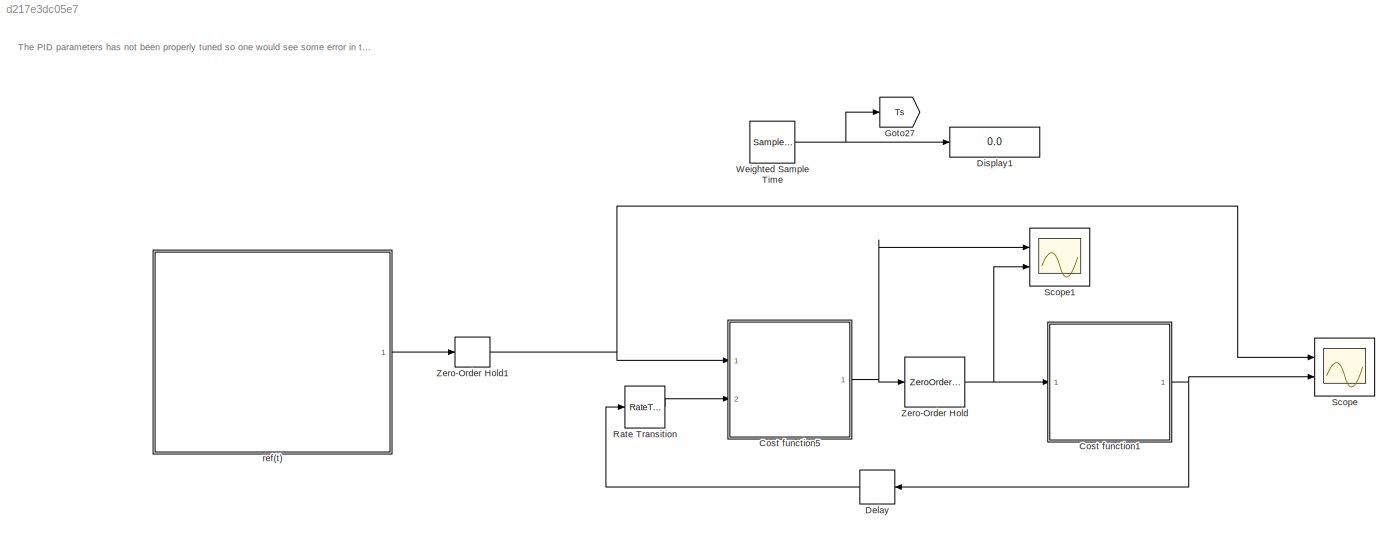
MODEL slx_d217e3dc05e7
KIND model
CONFIG AbsTol = auto
CONFIG EnableMultiTasking = off
CONFIG FixedStep = 0.001
CONFIG InitFcn = params.Kp = 98.4128;\nparams.Ki = 0.4971;\nparams.Kd = 0-64.7658;\nparams.u_min = -10;\nparams.u_max =  10;\nparams.enable_anti_windup = true;\nparams.deriv_filter_hz = 1.3029/(2*pi);\n\npid_mex('init', params);\n
CONFIG MaxStep = auto
CONFIG MinStep = auto
CONFIG RelTol = 1e-3
CONFIG SampleTimeConstraint = Unconstrained
CONFIG SolverName = FixedStepAuto
CONFIG StartTime = 0.0
CONFIG StopFcn = pid_mex('reset');\n
CONFIG StopTime = 10
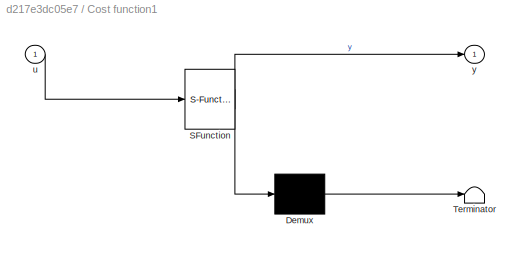
BLOCK [SubSystem] Cost function1
  ErrorFcn = Stateflow.Translate.translate
  PermitHierarchicalResolution = ExplicitOnly
  Ports = [1, 1]
  RequestExecContextInheritance = off
  SFBlockType = MATLAB Function
  SystemSampleTime = 0.001
  TreatAsAtomicUnit = on
BLOCK [Demux] Cost function1/ Demux 
  Outputs = 1
  Ports = [1, 1]
BLOCK [S-Function] Cost function1/ SFunction 
  EnableBusSupport = on
  FunctionName = sf_sfun
  PortCounts = [1 2]
  Ports = [1, 2]
  SFcnIsStateOwnerBlock = off
  SFunctionDeploymentMode = off
  Tag = Stateflow S-Function 1
BLOCK [Terminator] Cost function1/ Terminator 
BLOCK [Inport] Cost function1/u
BLOCK [Outport] Cost function1/y
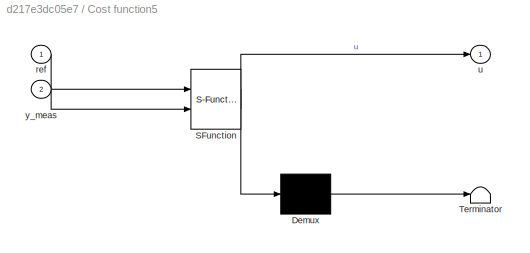
BLOCK [SubSystem] Cost function5
  ErrorFcn = Stateflow.Translate.translate
  PermitHierarchicalResolution = ExplicitOnly
  Ports = [2, 1]
  RequestExecContextInheritance = off
  SFBlockType = MATLAB Function
  SystemSampleTime = 0.01
  TreatAsAtomicUnit = on
BLOCK [Demux] Cost function5/ Demux 
  Outputs = 1
  Ports = [1, 1]
BLOCK [S-Function] Cost function5/ SFunction 
  EnableBusSupport = on
  FunctionName = sf_sfun
  PortCounts = [2 2]
  Ports = [2, 2]
  SFcnIsStateOwnerBlock = off
  SFunctionDeploymentMode = off
  Tag = Stateflow S-Function 17
BLOCK [Terminator] Cost function5/ Terminator 
BLOCK [Inport] Cost function5/ref
BLOCK [Outport] Cost function5/u
BLOCK [Inport] Cost function5/y_meas
  Port = 2
BLOCK [Delay] Delay
  DelayLength = 1
  InputPortMap = u0
  NameLocation = top
  Ports = [1, 1]
BLOCK [Display] Display1
  Decimation = 1
  Ports = [1]
BLOCK [Goto] Goto27
  GotoTag = Ts
  TagVisibility = global
BLOCK [RateTransition] Rate Transition
  OutPortSampleTime = 0.01
BLOCK [Scope] Scope
  Floating = off
  NumInputPorts = 2
  Ports = [2]
  ScopeSpecificationString = Simulink.scopes.TimeScopeBlockCfg('CurrentConfiguration', extmgr.ConfigurationSet(extmgr.Configuration('Core','General UI',true),extmgr.Configuration('Core','Source UI',true),extmgr.Configuration('Sources','WiredSimulink',true),extmgr.Configuration('Visuals','Time Domain',true,'SerializedDisplays',{struct('MinYLimReal','-0.075','MaxYLimReal','0.675','YLabelReal','','MinYLimMag','0.00000','MaxYLimM...<+1444ch>
BLOCK [Scope] Scope1
  Floating = off
  NumInputPorts = 2
  Ports = [2]
  ScopeSpecificationString = Simulink.scopes.TimeScopeBlockCfg('CurrentConfiguration', extmgr.ConfigurationSet(extmgr.Configuration('Core','General UI',true),extmgr.Configuration('Core','Source UI',true),extmgr.Configuration('Sources','WiredSimulink',true,'DataLoggingVariableName','ScopeData1'),extmgr.Configuration('Visuals','Time Domain',true,'SerializedDisplays',{struct('MinYLimReal','-0.72909','MaxYLimReal','6.56179','YLab...<+1655ch>
BLOCK [SampleTimeMath] Weighted Sample Time
  TsampMathOp = Ts Only
BLOCK [ZeroOrderHold] Zero-Order Hold
  SampleTime = 0.001
BLOCK [ZeroOrderHold] Zero-Order Hold1
  SampleTime = 0.001
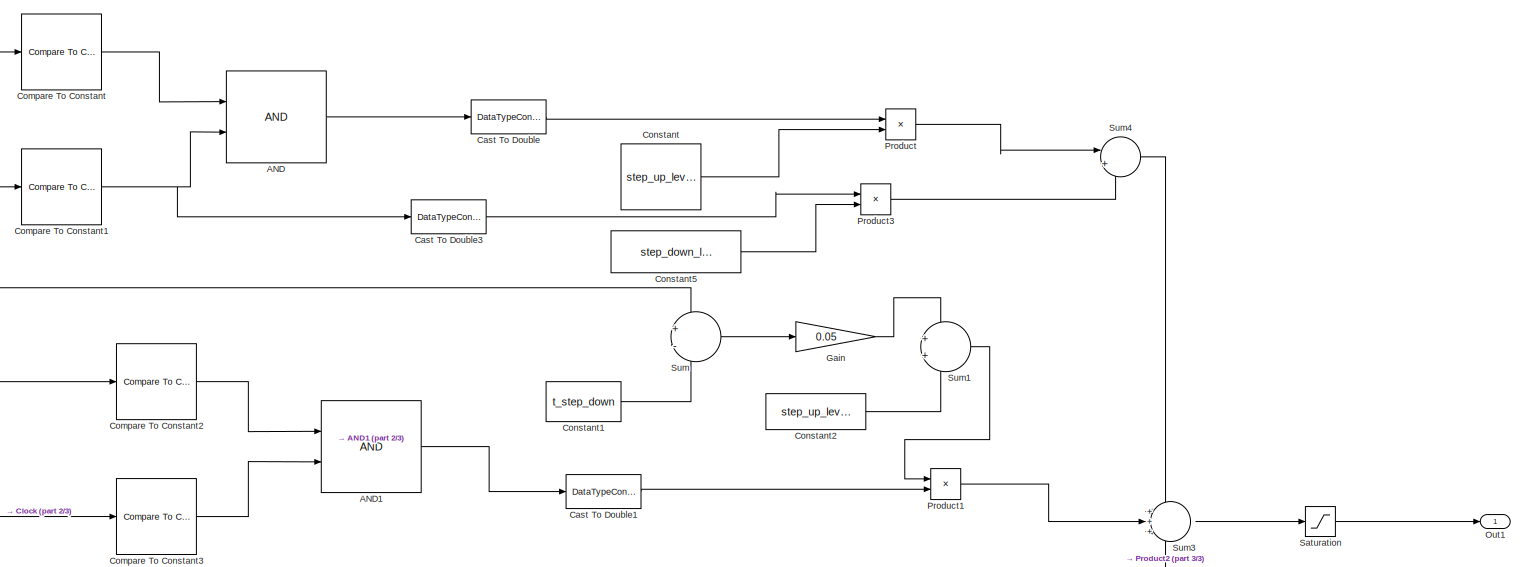
[diagram: ref(t) - part 1/3, top center region]
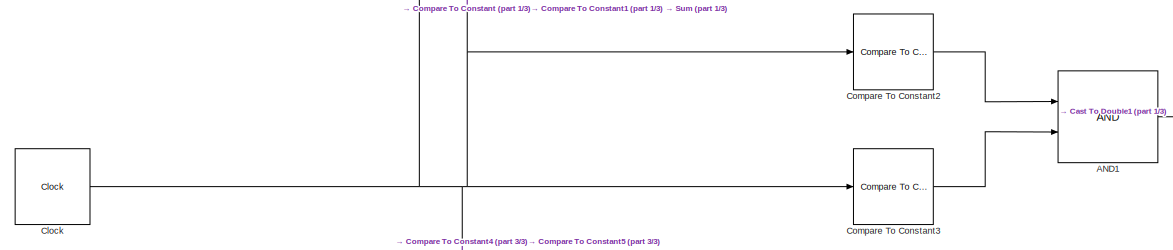
[diagram: ref(t) - part 2/3, middle left region]
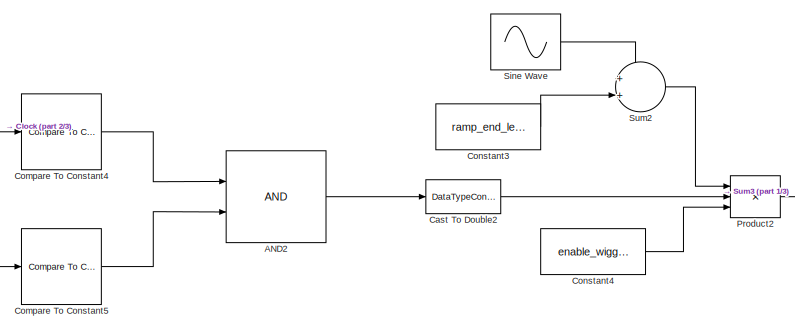
[diagram: ref(t) - part 3/3, bottom center region]
BLOCK [SubSystem] ref(t)
  Ports = [0, 1]
  RequestExecContextInheritance = off
BLOCK [Logic] ref(t)/AND
  AllPortsSameDT = off
  IconShape = distinctive
  OutDataTypeStr = boolean
  Ports = [2, 1]
BLOCK [Logic] ref(t)/AND1
  AllPortsSameDT = off
  IconShape = distinctive
  OutDataTypeStr = boolean
  Ports = [2, 1]
BLOCK [Logic] ref(t)/AND2
  AllPortsSameDT = off
  IconShape = distinctive
  OutDataTypeStr = boolean
  Ports = [2, 1]
BLOCK [DataTypeConversion] ref(t)/Cast To Double
  OutDataTypeStr = double
  RndMeth = Floor
  SaturateOnIntegerOverflow = off
BLOCK [DataTypeConversion] ref(t)/Cast To Double1
  OutDataTypeStr = double
  RndMeth = Floor
  SaturateOnIntegerOverflow = off
BLOCK [DataTypeConversion] ref(t)/Cast To Double2
  OutDataTypeStr = double
  RndMeth = Floor
  SaturateOnIntegerOverflow = off
BLOCK [DataTypeConversion] ref(t)/Cast To Double3
  OutDataTypeStr = double
  RndMeth = Floor
  SaturateOnIntegerOverflow = off
BLOCK [Clock] ref(t)/Clock
BLOCK [Reference] ref(t)/Compare To Constant  REF=simulink/Logic and Bit
Operations/Compare
To Constant
  Ports = [1, 1]
  SourceBlock = simulink/Logic and Bit\nOperations/Compare\nTo Constant
  SourceProductBaseCode = SL
  SourceType = Compare To Constant
BLOCK [Reference] ref(t)/Compare To Constant1  REF=simulink/Logic and Bit
Operations/Compare
To Constant
  Ports = [1, 1]
  SourceBlock = simulink/Logic and Bit\nOperations/Compare\nTo Constant
  SourceProductBaseCode = SL
  SourceType = Compare To Constant
BLOCK [Reference] ref(t)/Compare To Constant2  REF=simulink/Logic and Bit
Operations/Compare
To Constant
  Ports = [1, 1]
  SourceBlock = simulink/Logic and Bit\nOperations/Compare\nTo Constant
  SourceProductBaseCode = SL
  SourceType = Compare To Constant
BLOCK [Reference] ref(t)/Compare To Constant3  REF=simulink/Logic and Bit
Operations/Compare
To Constant
  Ports = [1, 1]
  SourceBlock = simulink/Logic and Bit\nOperations/Compare\nTo Constant
  SourceProductBaseCode = SL
  SourceType = Compare To Constant
BLOCK [Reference] ref(t)/Compare To Constant4  REF=simulink/Logic and Bit
Operations/Compare
To Constant
  Ports = [1, 1]
  SourceBlock = simulink/Logic and Bit\nOperations/Compare\nTo Constant
  SourceProductBaseCode = SL
  SourceType = Compare To Constant
BLOCK [Reference] ref(t)/Compare To Constant5  REF=simulink/Logic and Bit
Operations/Compare
To Constant
  Ports = [1, 1]
  SourceBlock = simulink/Logic and Bit\nOperations/Compare\nTo Constant
  SourceProductBaseCode = SL
  SourceType = Compare To Constant
BLOCK [Constant] ref(t)/Constant
  Value = step_up_level
BLOCK [Constant] ref(t)/Constant1
  Value = t_step_down
BLOCK [Constant] ref(t)/Constant2
  Value = step_up_level
BLOCK [Constant] ref(t)/Constant3
  Value = ramp_end_level
BLOCK [Constant] ref(t)/Constant4
  Value = enable_wiggle
BLOCK [Constant] ref(t)/Constant5
  Value = step_down_level
BLOCK [Gain] ref(t)/Gain
  Gain = 0.05
BLOCK [Outport] ref(t)/Out1
BLOCK [Product] ref(t)/Product
  Ports = [2, 1]
BLOCK [Product] ref(t)/Product1
  Ports = [2, 1]
BLOCK [Product] ref(t)/Product2
  Inputs = 3
  Ports = [3, 1]
BLOCK [Product] ref(t)/Product3
  Ports = [2, 1]
BLOCK [Saturate] ref(t)/Saturation
  LowerLimit = ref_min
  UpperLimit = ref_max
BLOCK [Sin] ref(t)/Sine Wave
  Amplitude = A_wiggle
  Frequency = 2*pi*f_wiggle
  Ports = [0, 1]
  SampleTime = 0
BLOCK [Sum] ref(t)/Sum
  Inputs = +-
  Ports = [2, 1]
BLOCK [Sum] ref(t)/Sum1
  Ports = [2, 1]
BLOCK [Sum] ref(t)/Sum2
  Ports = [2, 1]
BLOCK [Sum] ref(t)/Sum3
  Inputs = +++
  Ports = [3, 1]
BLOCK [Sum] ref(t)/Sum4
  Inputs = |++
  Ports = [2, 1]
ANNOTATION (root): The PID parameters has not been properly tuned so one would see some error in the tracked signal. Read the doc simulink_integration in the docs section to understand the intended use of this simulink model.
NET Cost function1:1 -> Delay:1, Scope:2
NET Cost function5:1 -> Scope1:1, Zero-Order Hold:1
LINE Delay:1 -> Rate Transition:1
LINE Rate Transition:1 -> Cost function5:2
NET Weighted Sample Time:1 -> Display1:1, Goto27:1
NET Zero-Order Hold1:1 -> Cost function5:1, Scope:1
NET Zero-Order Hold:1 -> Cost function1:1, Scope1:2
LINE ref(t)/AND1:1 -> ref(t)/Cast To Double1:1
LINE ref(t)/AND2:1 -> ref(t)/Cast To Double2:1
LINE ref(t)/AND:1 -> ref(t)/Cast To Double:1
LINE ref(t)/Cast To Double1:1 -> ref(t)/Product1:2
LINE ref(t)/Cast To Double2:1 -> ref(t)/Product2:2
LINE ref(t)/Cast To Double3:1 -> ref(t)/Product3:1
LINE ref(t)/Cast To Double:1 -> ref(t)/Product:1
NET ref(t)/Clock:1 -> ref(t)/Compare To Constant1:1, ref(t)/Compare To Constant2:1, ref(t)/Compare To Constant3:1, ref(t)/Compare To Constant4:1, ref(t)/Compare To Constant5:1, ref(t)/Compare To Constant:1, ref(t)/Sum:1
NET ref(t)/Compare To Constant1:1 -> ref(t)/AND:2, ref(t)/Cast To Double3:1
LINE ref(t)/Compare To Constant2:1 -> ref(t)/AND1:1
LINE ref(t)/Compare To Constant3:1 -> ref(t)/AND1:2
LINE ref(t)/Compare To Constant4:1 -> ref(t)/AND2:1
LINE ref(t)/Compare To Constant5:1 -> ref(t)/AND2:2
LINE ref(t)/Compare To Constant:1 -> ref(t)/AND:1
LINE ref(t)/Constant1:1 -> ref(t)/Sum:2
LINE ref(t)/Constant2:1 -> ref(t)/Sum1:2
LINE ref(t)/Constant3:1 -> ref(t)/Sum2:2
LINE ref(t)/Constant4:1 -> ref(t)/Product2:3
LINE ref(t)/Constant5:1 -> ref(t)/Product3:2
LINE ref(t)/Constant:1 -> ref(t)/Product:2
LINE ref(t)/Gain:1 -> ref(t)/Sum1:1
LINE ref(t)/Product1:1 -> ref(t)/Sum3:2
LINE ref(t)/Product2:1 -> ref(t)/Sum3:3
LINE ref(t)/Product3:1 -> ref(t)/Sum4:2
LINE ref(t)/Product:1 -> ref(t)/Sum4:1
LINE ref(t)/Saturation:1 -> ref(t)/Out1:1
LINE ref(t)/Sine Wave:1 -> ref(t)/Sum2:1
LINE ref(t)/Sum1:1 -> ref(t)/Product1:1
LINE ref(t)/Sum2:1 -> ref(t)/Product2:1
LINE ref(t)/Sum3:1 -> ref(t)/Saturation:1
LINE ref(t)/Sum4:1 -> ref(t)/Sum3:1
LINE ref(t)/Sum:1 -> ref(t)/Gain:1
LINE ref(t):1 -> Zero-Order Hold1:1
note: NET lines group one-source signal fan-out (src -> all destinations, sorted); 1:1 wires keep LINE
CHART Cost function1 states=1 transitions=1
  STATE_LABEL 'eML_blk_kernel()'
  STATE_LABEL 'SCRIPT:\nfunction y = plant_1000Hz(u)\npersistent yk\nif isempty(yk)\n    yk = 0;\nend\n\nTs = 0.001;\ntau = 0.3;\nK = 1.0;\n\na = exp(-Ts/tau);\nb = (1 - a)*K;\n\nyk = a*yk + b*u;\ny = yk;\nend\n'
CHART Cost function5 states=1 transitions=1
  STATE_LABEL 'eML_blk_kernel()'
  STATE_LABEL "SCRIPT:\nfunction u = controller_100Hz(ref, y_meas)\n% Call MEX from MATLAB execution (not codegen)\n\ncoder.extrinsic('pid_mex');\n\ndt_ctrl = 0.01;\n\n% Pre-allocate output as a double so Simulink knows the type/size\nu = 0.0;\n\n% Call MEX. This executes in MATLAB, not generated code.\nu = pid_mex('step', ref, y_meas, dt_ctrl);\nend\n"
CHART  states=0 transitions=0
CHART  states=0 transitions=0
